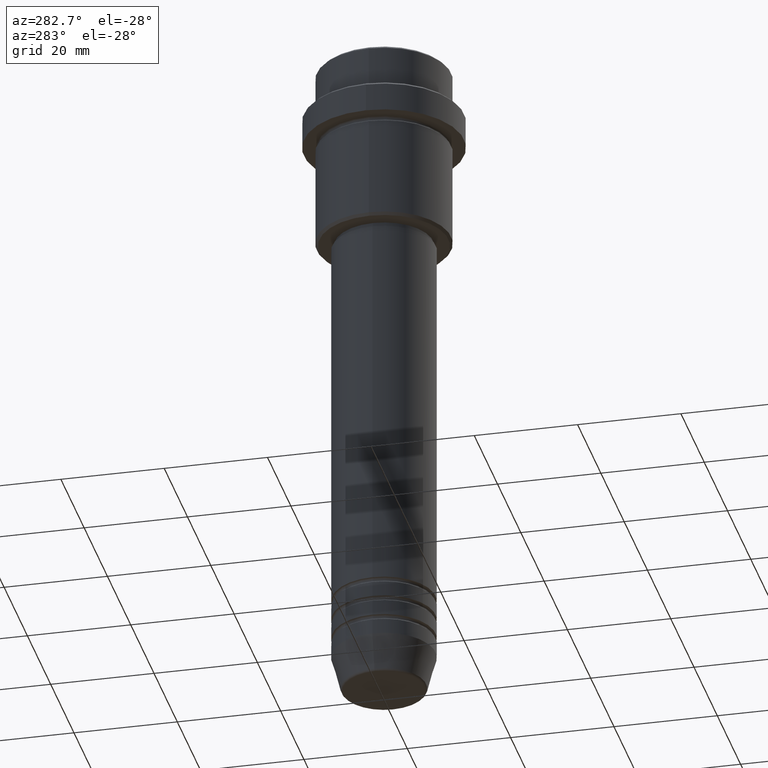
[diagram: clean part render]
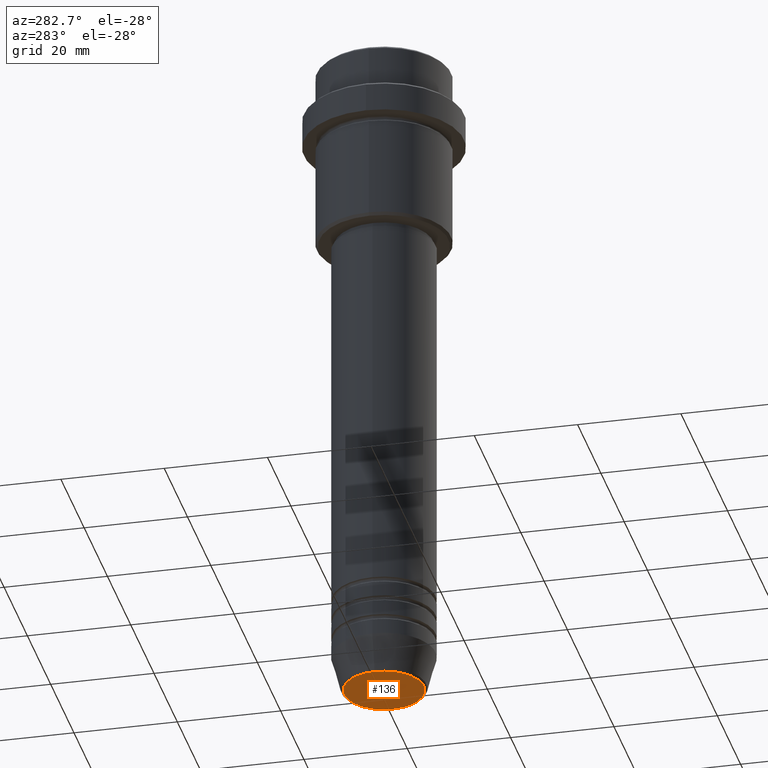
[diagram: same view with one face highlighted and labeled with its STEP entity id]
A machine part, auxiliary view. The second image highlights one B-rep face of the part: STEP entity #136.
In plain terms, the highlighted planar face has unit normal (0, -0, 1).
Its self-contained STEP definition (entity closure, byte-faithful):
#43 = CIRCLE ( 'NONE', #830, 7.740692158992654726 ) ;
#55 = PLANE ( 'NONE',  #486 ) ;
#69 = FACE_OUTER_BOUND ( 'NONE', #327, .T. ) ;
#102 = DIRECTION ( 'NONE',  ( 0.000000000000000000, -0.000000000000000000, 1.000000000000000000 ) ) ;
#136 = ADVANCED_FACE ( 'NONE', ( #69 ), #55, .F. ) ;
#160 = CARTESIAN_POINT ( 'NONE',  ( 7.740692158992654726, 0.000000000000000000, -131.0000000000000000 ) ) ;
#191 = DIRECTION ( 'NONE',  ( 1.000000000000000000, 0.000000000000000000, 0.000000000000000000 ) ) ;
#192 = CARTESIAN_POINT ( 'NONE',  ( -7.740692158992654726, 9.775343368540039135E-16, -131.0000000000000000 ) ) ;
#327 = EDGE_LOOP ( 'NONE', ( #663, #807 ) ) ;
#390 = DIRECTION ( 'NONE',  ( 0.000000000000000000, 0.000000000000000000, -1.000000000000000000 ) ) ;
#484 = DIRECTION ( 'NONE',  ( 1.000000000000000000, 0.000000000000000000, 0.000000000000000000 ) ) ;
#486 = AXIS2_PLACEMENT_3D ( 'NONE', #496, #102, #484 ) ;
#496 = CARTESIAN_POINT ( 'NONE',  ( 0.000000000000000000, 0.000000000000000000, -131.0000000000000000 ) ) ;
#663 = ORIENTED_EDGE ( 'NONE', *, *, #1187, .T. ) ;
#807 = ORIENTED_EDGE ( 'NONE', *, *, #1137, .T. ) ;
#828 = VERTEX_POINT ( 'NONE', #160 ) ;
#830 = AXIS2_PLACEMENT_3D ( 'NONE', #958, #390, #1399 ) ;
#837 = DIRECTION ( 'NONE',  ( 0.000000000000000000, 0.000000000000000000, -1.000000000000000000 ) ) ;
#958 = CARTESIAN_POINT ( 'NONE',  ( 0.000000000000000000, 0.000000000000000000, -131.0000000000000000 ) ) ;
#1031 = VERTEX_POINT ( 'NONE', #192 ) ;
#1092 = AXIS2_PLACEMENT_3D ( 'NONE', #1164, #837, #191 ) ;
#1137 = EDGE_CURVE ( 'NONE', #1031, #828, #1298, .T. ) ;
#1164 = CARTESIAN_POINT ( 'NONE',  ( 0.000000000000000000, 0.000000000000000000, -131.0000000000000000 ) ) ;
#1187 = EDGE_CURVE ( 'NONE', #828, #1031, #43, .T. ) ;
#1298 = CIRCLE ( 'NONE', #1092, 7.740692158992654726 ) ;
#1399 = DIRECTION ( 'NONE',  ( 1.000000000000000000, 0.000000000000000000, 0.000000000000000000 ) ) ;